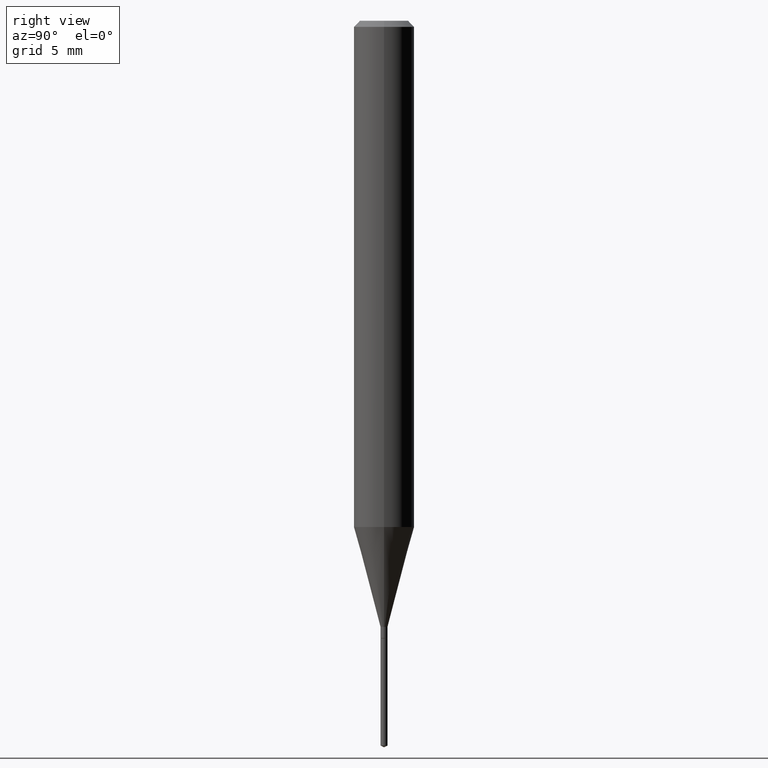
[diagram: clean part render]
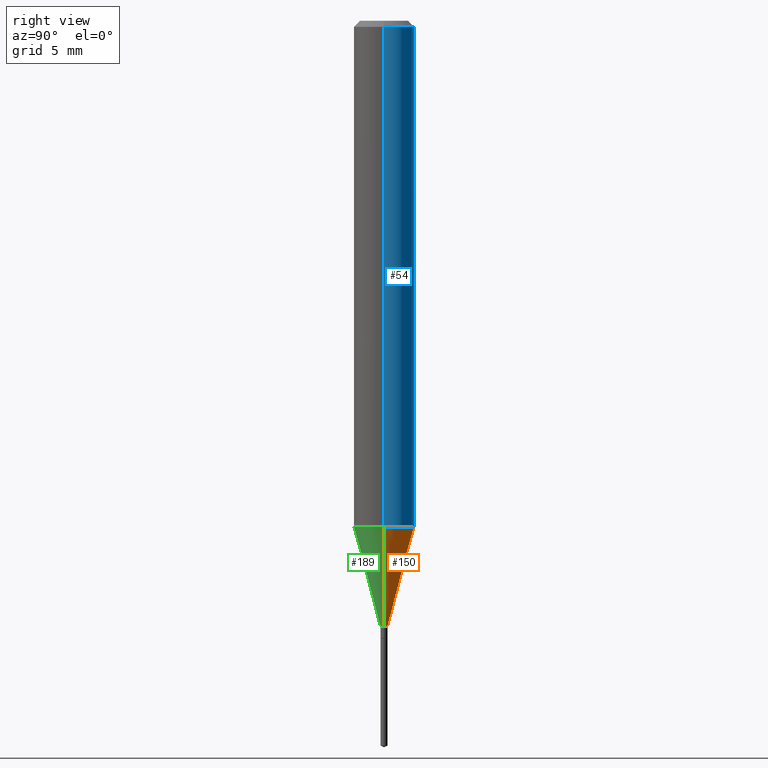
[diagram: same view with three faces highlighted in distinct colors, each labeled with its STEP entity id]
A machine part, right view with three faces highlighted in distinct colors.
Their STEP definitions:

[orange] entity #150 — the highlighted conical surface has half-angle 15 deg.
#20 = EDGE_CURVE ( 'NONE', #267, #313, #203, .T. ) ;
#26 = CARTESIAN_POINT ( 'NONE',  ( 2.556014249786402796E-29, -3.649310934727484805E-15, -1.045204192881819649 ) ) ;
#27 = CARTESIAN_POINT ( 'NONE',  ( 0.06250000000000013878, -4.085746102082878052E-15, -1.045204192881819649 ) ) ;
#32 = CARTESIAN_POINT ( 'NONE',  ( 3.060259664060080366E-29, -4.369239747428313470E-15, -1.251400000000000290 ) ) ;
#81 = VERTEX_POINT ( 'NONE', #329 ) ;
#105 = VECTOR ( 'NONE', #430, 39.37007874015748854 ) ;
#108 = FACE_OUTER_BOUND ( 'NONE', #421, .T. ) ;
#138 = DIRECTION ( 'NONE',  ( -2.445468806185136597E-29, 3.491481338843145583E-15, 1.000000000000000000 ) ) ;
#148 = CARTESIAN_POINT ( 'NONE',  ( -0.007250000000000000368, -4.358052008549344274E-15, -1.251400000000000290 ) ) ;
#150 = ADVANCED_FACE ( 'NONE', ( #108 ), #292, .T. ) ;
#160 = ORIENTED_EDGE ( 'NONE', *, *, #266, .F. ) ;
#164 = ORIENTED_EDGE ( 'NONE', *, *, #20, .T. ) ;
#166 = ORIENTED_EDGE ( 'NONE', *, *, #198, .F. ) ;
#182 = DIRECTION ( 'NONE',  ( 1.000000000000000000, -6.982962677686299054E-15, 0.000000000000000000 ) ) ;
#185 = DIRECTION ( 'NONE',  ( 1.000000000000000000, -6.982962677686299054E-15, 0.000000000000000000 ) ) ;
#198 = EDGE_CURVE ( 'NONE', #475, #313, #333, .T. ) ;
#203 = LINE ( 'NONE', #278, #105 ) ;
#211 = VECTOR ( 'NONE', #305, 39.37007874015748854 ) ;
#226 = DIRECTION ( 'NONE',  ( 1.000000000000000000, -6.982962677686262766E-15, 0.000000000000000000 ) ) ;
#266 = EDGE_CURVE ( 'NONE', #81, #475, #456, .T. ) ;
#267 = VERTEX_POINT ( 'NONE', #148 ) ;
#276 = AXIS2_PLACEMENT_3D ( 'NONE', #449, #138, #185 ) ;
#277 = CARTESIAN_POINT ( 'NONE',  ( -0.06250000000000013878, -3.205221724877421794E-15, -1.045204192881819649 ) ) ;
#278 = CARTESIAN_POINT ( 'NONE',  ( -0.007250000000000000368, -4.317725399085706358E-15, -1.251400000000000290 ) ) ;
#292 = CONICAL_SURFACE ( 'NONE', #334, 0.007250000000000000368, 0.2617993877991499629 ) ;
#305 = DIRECTION ( 'NONE',  ( 0.2588190451025212391, 1.565188264969622362E-15, 0.9659258262890679791 ) ) ;
#313 = VERTEX_POINT ( 'NONE', #277 ) ;
#329 = CARTESIAN_POINT ( 'NONE',  ( 0.007250000000000000368, -4.419866226841538651E-15, -1.251400000000000290 ) ) ;
#333 = CIRCLE ( 'NONE', #431, 0.06250000000000013878 ) ;
#334 = AXIS2_PLACEMENT_3D ( 'NONE', #32, #379, #182 ) ;
#377 = EDGE_CURVE ( 'NONE', #81, #267, #490, .T. ) ;
#379 = DIRECTION ( 'NONE',  ( -2.445468806185136597E-29, 3.491481338843145583E-15, 1.000000000000000000 ) ) ;
#411 = DIRECTION ( 'NONE',  ( -2.445468806185136597E-29, 3.491481338843145583E-15, 1.000000000000000000 ) ) ;
#419 = ORIENTED_EDGE ( 'NONE', *, *, #377, .T. ) ;
#421 = EDGE_LOOP ( 'NONE', ( #419, #164, #166, #160 ) ) ;
#430 = DIRECTION ( 'NONE',  ( -0.2588190451025212391, 5.211531920934549464E-15, 0.9659258262890679791 ) ) ;
#431 = AXIS2_PLACEMENT_3D ( 'NONE', #26, #411, #226 ) ;
#449 = CARTESIAN_POINT ( 'NONE',  ( 3.060259664060080366E-29, -4.369239747428313470E-15, -1.251400000000000290 ) ) ;
#456 = LINE ( 'NONE', #487, #211 ) ;
#475 = VERTEX_POINT ( 'NONE', #27 ) ;
#487 = CARTESIAN_POINT ( 'NONE',  ( 0.007250000000000000368, -4.419866226841538651E-15, -1.251400000000000290 ) ) ;
#490 = CIRCLE ( 'NONE', #276, 0.007250000000000000368 ) ;

[blue] entity #54 — the highlighted cylindrical surface (edge-blend (fillet) strip) has radius 1.5875 mm, axis along (-0, 0, 1).
#5 = DIRECTION ( 'NONE',  ( 1.000000000000000000, -6.982962677686266711E-15, 0.000000000000000000 ) ) ;
#6 = ORIENTED_EDGE ( 'NONE', *, *, #39, .F. ) ;
#8 = DIRECTION ( 'NONE',  ( 1.000000000000000000, -6.982962677686266711E-15, 4.876176775795935793E-29 ) ) ;
#17 = VECTOR ( 'NONE', #215, 39.37007874015748143 ) ;
#22 = CARTESIAN_POINT ( 'NONE',  ( 0.06250000000000006939, -4.364351673553921624E-16, 3.047610484872463374E-30 ) ) ;
#26 = CARTESIAN_POINT ( 'NONE',  ( 2.556014249786402796E-29, -3.649310934727484805E-15, -1.045204192881819649 ) ) ;
#27 = CARTESIAN_POINT ( 'NONE',  ( 0.06250000000000013878, -4.085746102082878052E-15, -1.045204192881819649 ) ) ;
#33 = ORIENTED_EDGE ( 'NONE', *, *, #238, .T. ) ;
#39 = EDGE_CURVE ( 'NONE', #369, #324, #342, .T. ) ;
#54 = ADVANCED_FACE ( 'NONE', ( #322 ), #200, .T. ) ;
#107 = LINE ( 'NONE', #22, #462 ) ;
#136 = ORIENTED_EDGE ( 'NONE', *, *, #198, .T. ) ;
#198 = EDGE_CURVE ( 'NONE', #475, #313, #333, .T. ) ;
#200 = CYLINDRICAL_SURFACE ( 'NONE', #258, 0.06250000000000006939 ) ;
#215 = DIRECTION ( 'NONE',  ( -2.445468806185136877E-29, 3.491481338843145188E-15, 1.000000000000000000 ) ) ;
#226 = DIRECTION ( 'NONE',  ( 1.000000000000000000, -6.982962677686262766E-15, 0.000000000000000000 ) ) ;
#227 = ORIENTED_EDGE ( 'NONE', *, *, #416, .F. ) ;
#238 = EDGE_CURVE ( 'NONE', #313, #324, #301, .T. ) ;
#253 = EDGE_LOOP ( 'NONE', ( #136, #33, #6, #227 ) ) ;
#258 = AXIS2_PLACEMENT_3D ( 'NONE', #274, #358, #8 ) ;
#274 = CARTESIAN_POINT ( 'NONE',  ( 0.000000000000000000, 0.000000000000000000, 0.000000000000000000 ) ) ;
#277 = CARTESIAN_POINT ( 'NONE',  ( -0.06250000000000013878, -3.205221724877421794E-15, -1.045204192881819649 ) ) ;
#280 = AXIS2_PLACEMENT_3D ( 'NONE', #362, #356, #5 ) ;
#295 = CARTESIAN_POINT ( 'NONE',  ( -0.06250000000000000000, -1.402388015881448581E-15, -0.01250000000000008396 ) ) ;
#301 = LINE ( 'NONE', #346, #17 ) ;
#313 = VERTEX_POINT ( 'NONE', #277 ) ;
#322 = FACE_OUTER_BOUND ( 'NONE', #253, .T. ) ;
#324 = VERTEX_POINT ( 'NONE', #295 ) ;
#333 = CIRCLE ( 'NONE', #431, 0.06250000000000013878 ) ;
#336 = DIRECTION ( 'NONE',  ( -2.445468806185136877E-29, 3.491481338843145188E-15, 1.000000000000000000 ) ) ;
#342 = CIRCLE ( 'NONE', #280, 0.06250000000000000000 ) ;
#346 = CARTESIAN_POINT ( 'NONE',  ( -0.06250000000000006939, 4.440892098500631092E-16, -3.074334431409319267E-30 ) ) ;
#356 = DIRECTION ( 'NONE',  ( -2.445468806185136597E-29, 3.491481338843145583E-15, 1.000000000000000000 ) ) ;
#358 = DIRECTION ( 'NONE',  ( -2.445468806185136597E-29, 3.491481338843145583E-15, 1.000000000000000000 ) ) ;
#362 = CARTESIAN_POINT ( 'NONE',  ( 3.056836007731441415E-31, -4.364351673553961684E-17, -0.01250000000000008396 ) ) ;
#369 = VERTEX_POINT ( 'NONE', #412 ) ;
#411 = DIRECTION ( 'NONE',  ( -2.445468806185136597E-29, 3.491481338843145583E-15, 1.000000000000000000 ) ) ;
#412 = CARTESIAN_POINT ( 'NONE',  ( 0.06250000000000000000, -4.800786840909313294E-16, -0.01250000000000008396 ) ) ;
#416 = EDGE_CURVE ( 'NONE', #475, #369, #107, .T. ) ;
#431 = AXIS2_PLACEMENT_3D ( 'NONE', #26, #411, #226 ) ;
#462 = VECTOR ( 'NONE', #336, 39.37007874015748143 ) ;
#475 = VERTEX_POINT ( 'NONE', #27 ) ;

[green] entity #189 — the highlighted conical surface has half-angle 15 deg.
#20 = EDGE_CURVE ( 'NONE', #267, #313, #203, .T. ) ;
#27 = CARTESIAN_POINT ( 'NONE',  ( 0.06250000000000013878, -4.085746102082878052E-15, -1.045204192881819649 ) ) ;
#30 = DIRECTION ( 'NONE',  ( 1.000000000000000000, -6.982962677686299054E-15, 0.000000000000000000 ) ) ;
#43 = EDGE_CURVE ( 'NONE', #313, #475, #351, .T. ) ;
#46 = CIRCLE ( 'NONE', #269, 0.007250000000000000368 ) ;
#74 = ORIENTED_EDGE ( 'NONE', *, *, #43, .F. ) ;
#81 = VERTEX_POINT ( 'NONE', #329 ) ;
#87 = DIRECTION ( 'NONE',  ( 1.000000000000000000, -6.982962677686262766E-15, 0.000000000000000000 ) ) ;
#105 = VECTOR ( 'NONE', #430, 39.37007874015748854 ) ;
#114 = CONICAL_SURFACE ( 'NONE', #151, 0.007250000000000000368, 0.2617993877991499629 ) ;
#118 = FACE_OUTER_BOUND ( 'NONE', #176, .T. ) ;
#124 = ORIENTED_EDGE ( 'NONE', *, *, #20, .F. ) ;
#148 = CARTESIAN_POINT ( 'NONE',  ( -0.007250000000000000368, -4.358052008549344274E-15, -1.251400000000000290 ) ) ;
#151 = AXIS2_PLACEMENT_3D ( 'NONE', #489, #186, #30 ) ;
#165 = DIRECTION ( 'NONE',  ( -2.445468806185136597E-29, 3.491481338843145583E-15, 1.000000000000000000 ) ) ;
#176 = EDGE_LOOP ( 'NONE', ( #124, #306, #217, #74 ) ) ;
#186 = DIRECTION ( 'NONE',  ( -2.445468806185136597E-29, 3.491481338843145583E-15, 1.000000000000000000 ) ) ;
#189 = ADVANCED_FACE ( 'NONE', ( #118 ), #114, .T. ) ;
#203 = LINE ( 'NONE', #278, #105 ) ;
#211 = VECTOR ( 'NONE', #305, 39.37007874015748854 ) ;
#217 = ORIENTED_EDGE ( 'NONE', *, *, #266, .T. ) ;
#234 = CARTESIAN_POINT ( 'NONE',  ( 2.556014249786402796E-29, -3.649310934727484805E-15, -1.045204192881819649 ) ) ;
#266 = EDGE_CURVE ( 'NONE', #81, #475, #456, .T. ) ;
#267 = VERTEX_POINT ( 'NONE', #148 ) ;
#269 = AXIS2_PLACEMENT_3D ( 'NONE', #309, #165, #367 ) ;
#277 = CARTESIAN_POINT ( 'NONE',  ( -0.06250000000000013878, -3.205221724877421794E-15, -1.045204192881819649 ) ) ;
#278 = CARTESIAN_POINT ( 'NONE',  ( -0.007250000000000000368, -4.317725399085706358E-15, -1.251400000000000290 ) ) ;
#305 = DIRECTION ( 'NONE',  ( 0.2588190451025212391, 1.565188264969622362E-15, 0.9659258262890679791 ) ) ;
#306 = ORIENTED_EDGE ( 'NONE', *, *, #307, .T. ) ;
#307 = EDGE_CURVE ( 'NONE', #267, #81, #46, .T. ) ;
#309 = CARTESIAN_POINT ( 'NONE',  ( 3.060259664060080366E-29, -4.369239747428313470E-15, -1.251400000000000290 ) ) ;
#313 = VERTEX_POINT ( 'NONE', #277 ) ;
#329 = CARTESIAN_POINT ( 'NONE',  ( 0.007250000000000000368, -4.419866226841538651E-15, -1.251400000000000290 ) ) ;
#351 = CIRCLE ( 'NONE', #469, 0.06250000000000013878 ) ;
#367 = DIRECTION ( 'NONE',  ( 1.000000000000000000, -6.982962677686299054E-15, 0.000000000000000000 ) ) ;
#388 = DIRECTION ( 'NONE',  ( -2.445468806185136597E-29, 3.491481338843145583E-15, 1.000000000000000000 ) ) ;
#430 = DIRECTION ( 'NONE',  ( -0.2588190451025212391, 5.211531920934549464E-15, 0.9659258262890679791 ) ) ;
#456 = LINE ( 'NONE', #487, #211 ) ;
#469 = AXIS2_PLACEMENT_3D ( 'NONE', #234, #388, #87 ) ;
#475 = VERTEX_POINT ( 'NONE', #27 ) ;
#487 = CARTESIAN_POINT ( 'NONE',  ( 0.007250000000000000368, -4.419866226841538651E-15, -1.251400000000000290 ) ) ;
#489 = CARTESIAN_POINT ( 'NONE',  ( 3.060259664060080366E-29, -4.369239747428313470E-15, -1.251400000000000290 ) ) ;